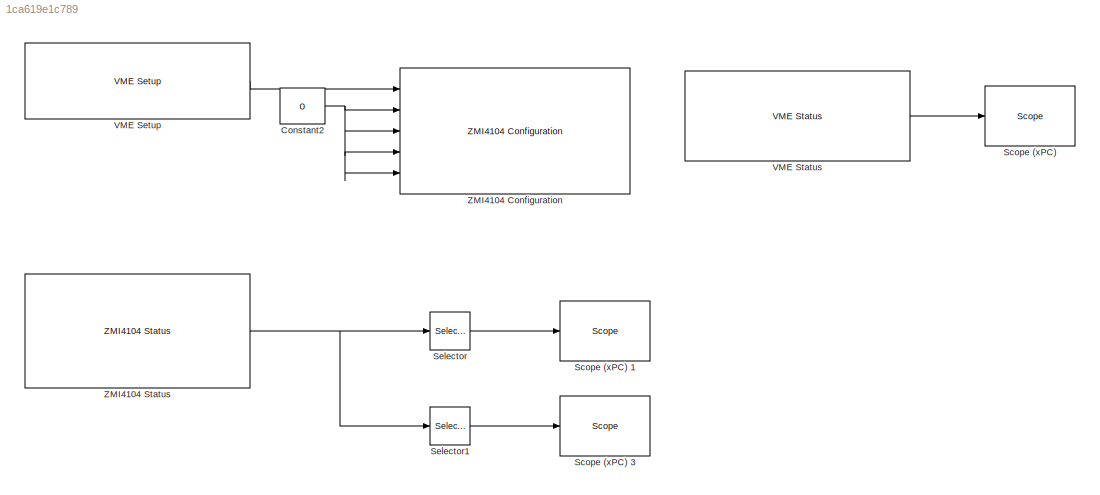
MODEL slx_1ca619e1c789
KIND model
BLOCK [Constant] Constant2
  Value = 0
BLOCK [Reference] Scope (xPC)   REF=slrtlib/Displays and
Logging/Scope 
  Ports = [1]
  SourceBlock = slrtlib/Displays and\nLogging/Scope
  SourceType = xpcscopeblock
  autorestart = off
  autostart = on
  dynamicfilemode = off
  filename = data.dat
  formatstr = 'VME link error: %1.0f'
  grid = on
  interleave = 1
  maxwritefilesize = 512*1024^2
  mode = Lazy
  noprepostsamples = 0
  nosamples = 3
  scopeno = 1
  scopetype = Target
  triggerlevel = 0.0
  triggermode = FreeRun
  triggersample = 0
  triggerscope = 1
  triggersignal = 1
  triggerslope = Either
  trigsignalfromport = off
  viewmode = Numerical
  writesize = 512
  ylimits = [0,0]
BLOCK [Reference] Scope (xPC) 1  REF=slrtlib/Displays and
Logging/Scope 
  Ports = [1]
  SourceBlock = slrtlib/Displays and\nLogging/Scope
  SourceType = xpcscopeblock
  autorestart = off
  autostart = on
  dynamicfilemode = off
  filename = data.dat
  formatstr = 'Power Error: %1.0f,Write Error: %1.0f,Reference Signal Missing: %1.0f,Reference PLL Error: %1.0f,Reset Complete: %1.0f,Reset Failure: %1.0f,FPGA Sync Error: %1.0f,OverTempError: %1.0f,Measure Signal Missing: %1.0f,Measure Signal Saturated: %1.0f'
  grid = on
  interleave = 1
  maxwritefilesize = 512*1024^2
  mode = Lazy
  noprepostsamples = 0
  nosamples = 3
  scopeno = 2
  scopetype = Target
  triggerlevel = 0.0
  triggermode = FreeRun
  triggersample = 0
  triggerscope = 1
  triggersignal = 1
  triggerslope = Either
  trigsignalfromport = off
  viewmode = Numerical
  writesize = 512
  ylimits = [0,0]
BLOCK [Reference] Scope (xPC) 3  REF=slrtlib/Displays and
Logging/Scope 
  Ports = [1]
  SourceBlock = slrtlib/Displays and\nLogging/Scope
  SourceType = xpcscopeblock
  autorestart = off
  autostart = on
  dynamicfilemode = off
  filename = data.dat
  formatstr = 'SSI Max Limit: %1.0f,Measure Signal Dropout: %1.0f,Measure Signal Glitch: %1.0f,Acceleration Error: %1.0f,Phase Noise Error: %1.0f,CEC Error: %1.0f,Velocity Error: %1.0f,User Velocity Error: %1.0f,37-bit Position Overflow: %1.0f,VME 32 bit Position Overflow: %1.0f'
  grid = on
  interleave = 1
  maxwritefilesize = 512*1024^2
  mode = Lazy
  noprepostsamples = 0
  nosamples = 3
  scopeno = 3
  scopetype = Target
  triggerlevel = 0.0
  triggermode = FreeRun
  triggersample = 0
  triggerscope = 1
  triggersignal = 1
  triggerslope = Either
  trigsignalfromport = off
  viewmode = Numerical
  writesize = 512
  ylimits = [0,0]
BLOCK [Selector] Selector
  Indices = [1,2,3,4,5,6,7,8,9,10]
  InputPortWidth = 20
  Ports = [1, 1]
BLOCK [Selector] Selector1
  Indices = [11,12,13,14,15,16,17,18,19,20]
  InputPortWidth = 20
  Ports = [1, 1]
BLOCK [Reference] VME Setup  REF=speedgoatlib_ZMI4104/VME Setup
  Ports = [0, 1]
  SourceBlock = speedgoatlib_ZMI4104/VME Setup
  SourceType = vmesetup_zmi4104
  id = 1
  modules = 1
  slot = -1
  z1_addr_sw1 = 0
  z1_addr_sw2 = 0
  z1_id = 1
  z2_addr_sw1 = 0
  z2_addr_sw2 = 1
  z2_id = 2
BLOCK [Reference] VME Status  REF=speedgoatlib_ZMI4104/VME Status
  Ports = [0, 1]
  SourceBlock = speedgoatlib_ZMI4104/VME Status
  SourceType = vmestatus_zmi4104
  id = 1
  slot = -1
  ts = -1
BLOCK [Reference] ZMI4104 Configuration  REF=speedgoatlib_ZMI4104/ZMI4104 Configuration
  Ports = [5]
  SourceBlock = speedgoatlib_ZMI4104/ZMI4104 Configuration
  SourceType = initaxis_zmi4104
  ax1_filter_kp = -8
  ax1_filter_kv = -19
  ax2_filter_kp = -8
  ax2_filter_kv = -19
  ax3_filter_kp = -8
  ax3_filter_kv = -19
  ax4_filter_kp = -8
  ax4_filter_kv = -19
  id = 1
  slot = -1
  ts = -1
BLOCK [Reference] ZMI4104 Status  REF=speedgoatlib_ZMI4104/ZMI4104 Status
  Ports = [0, 1]
  SourceBlock = speedgoatlib_ZMI4104/ZMI4104 Status
  SourceType = status_zmi4104
  axis = 1
  id = 1
  slot = -1
  ts = -1
  zmi_id = 1
NET Constant2:1 -> ZMI4104 Configuration:2, ZMI4104 Configuration:3, ZMI4104 Configuration:4, ZMI4104 Configuration:5
LINE Selector1:1 -> Scope (xPC) 3:1
LINE Selector:1 -> Scope (xPC) 1:1
LINE VME Setup:1 -> ZMI4104 Configuration:1
LINE VME Status:1 -> Scope (xPC) :1
NET ZMI4104 Status:1 -> Selector1:1, Selector:1
note: NET lines group one-source signal fan-out (src -> all destinations, sorted); 1:1 wires keep LINE
